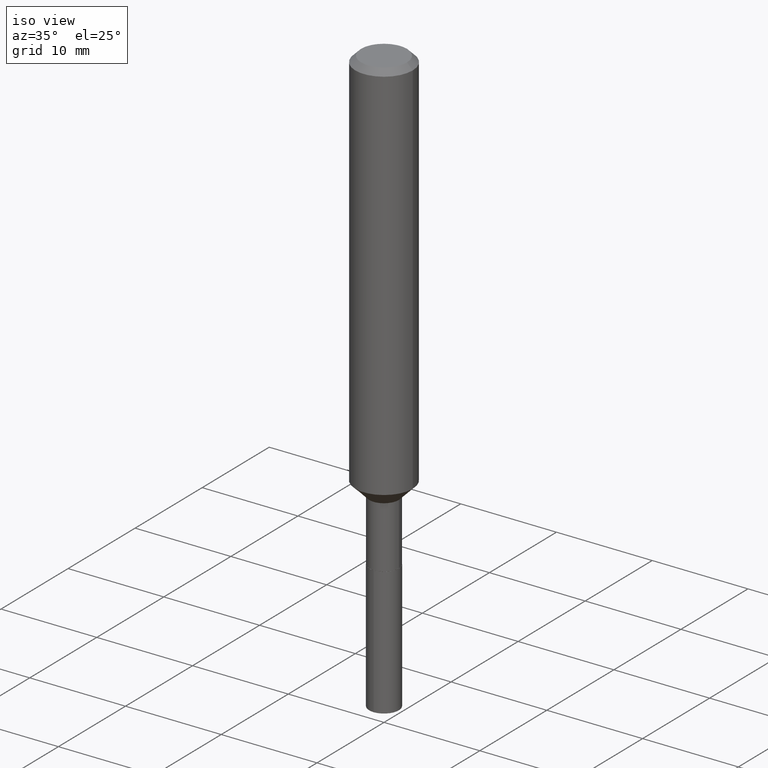
[diagram: clean part render]
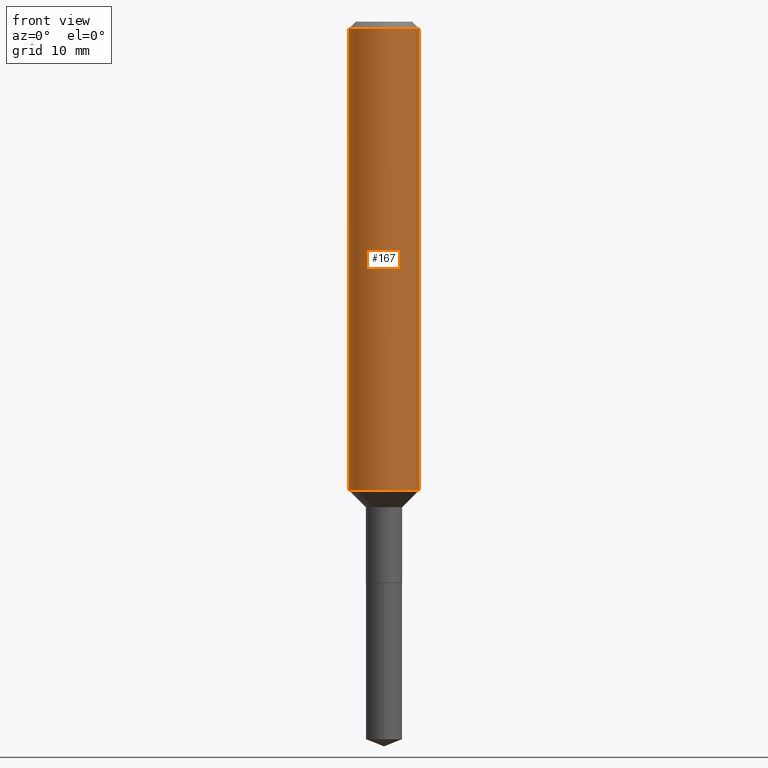
[diagram: tour spotlight — one face highlighted and labeled with its STEP entity id]
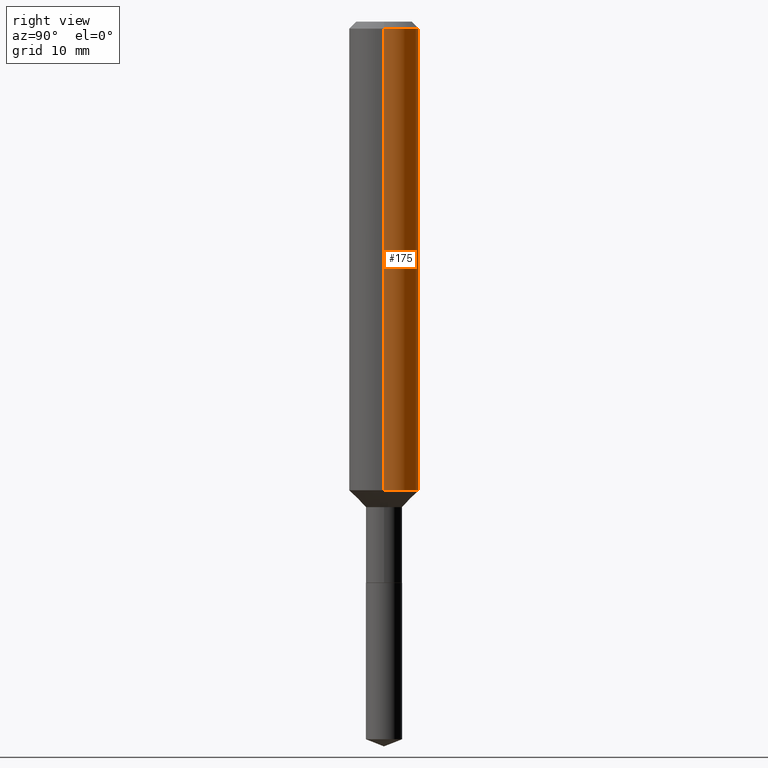
[diagram: tour spotlight — one face highlighted and labeled with its STEP entity id]
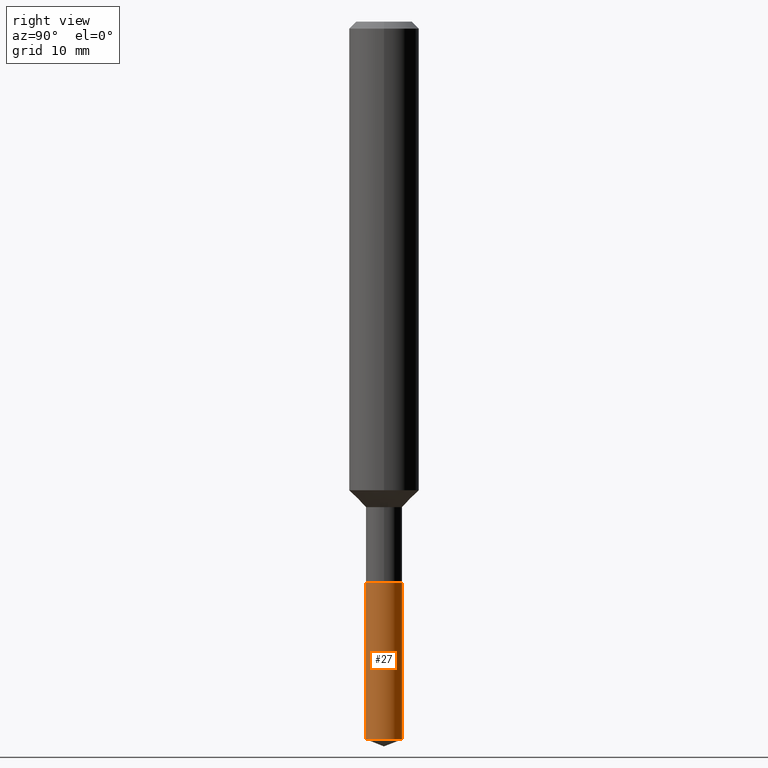
[diagram: tour spotlight — one face highlighted and labeled with its STEP entity id]
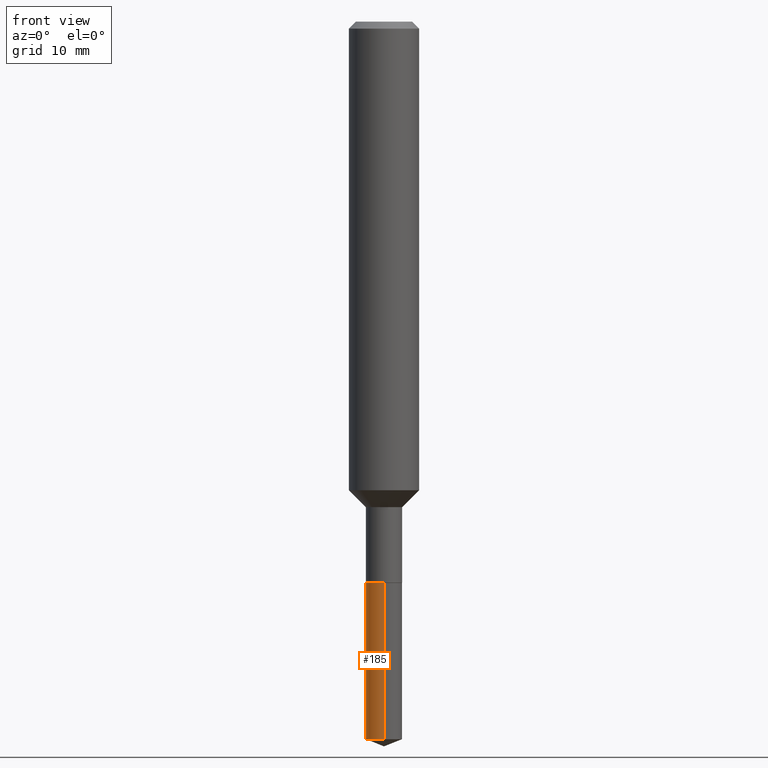
[diagram: tour spotlight — one face highlighted and labeled with its STEP entity id]
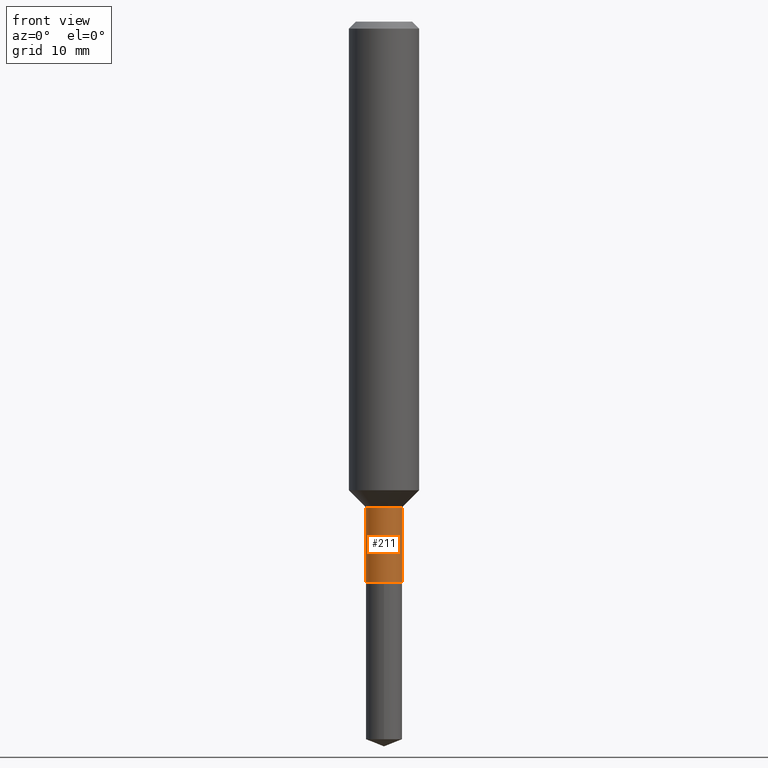
[diagram: tour spotlight — one face highlighted and labeled with its STEP entity id]
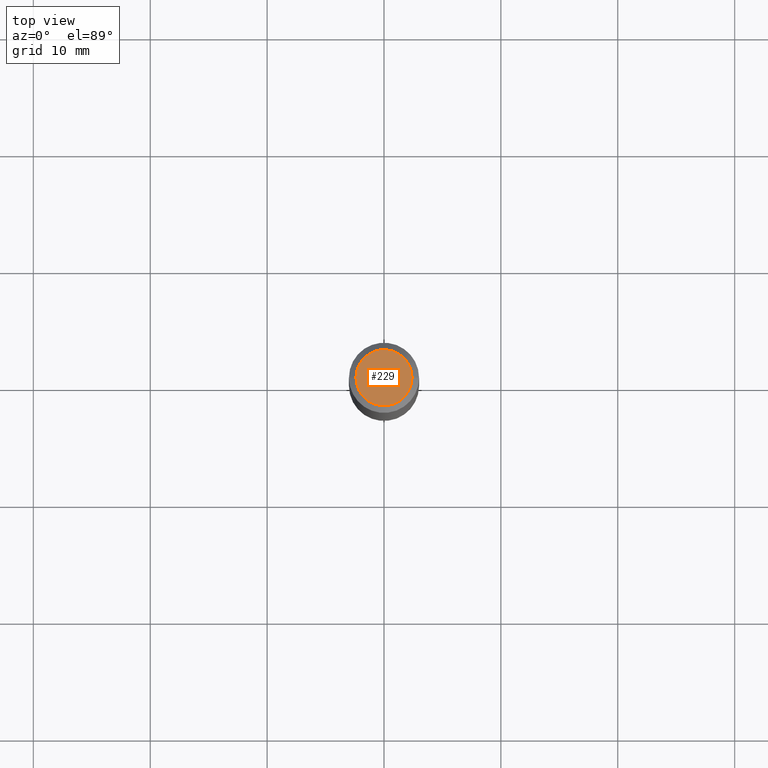
[diagram: tour spotlight — one face highlighted and labeled with its STEP entity id]
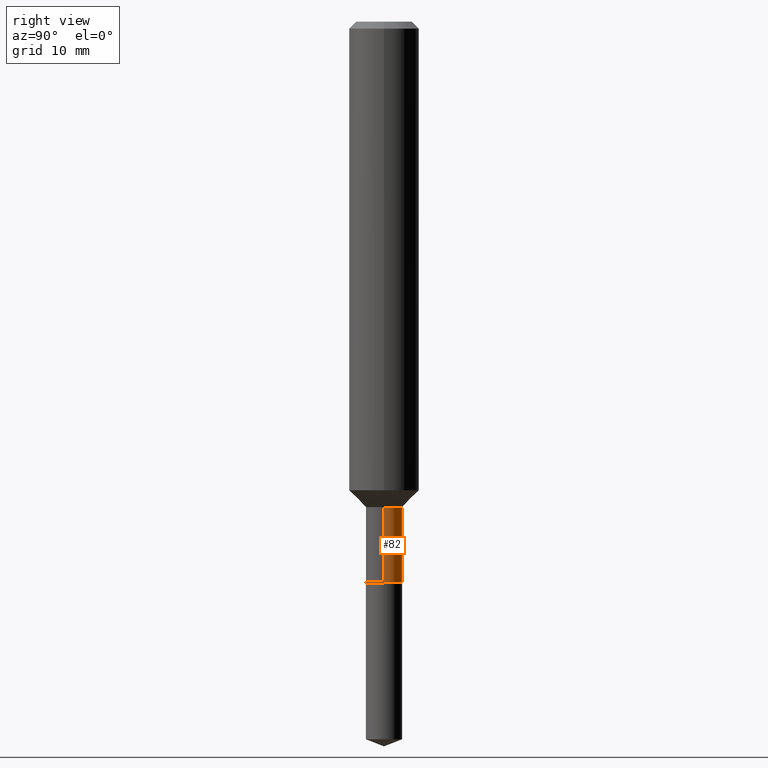
[diagram: tour spotlight — one face highlighted and labeled with its STEP entity id]
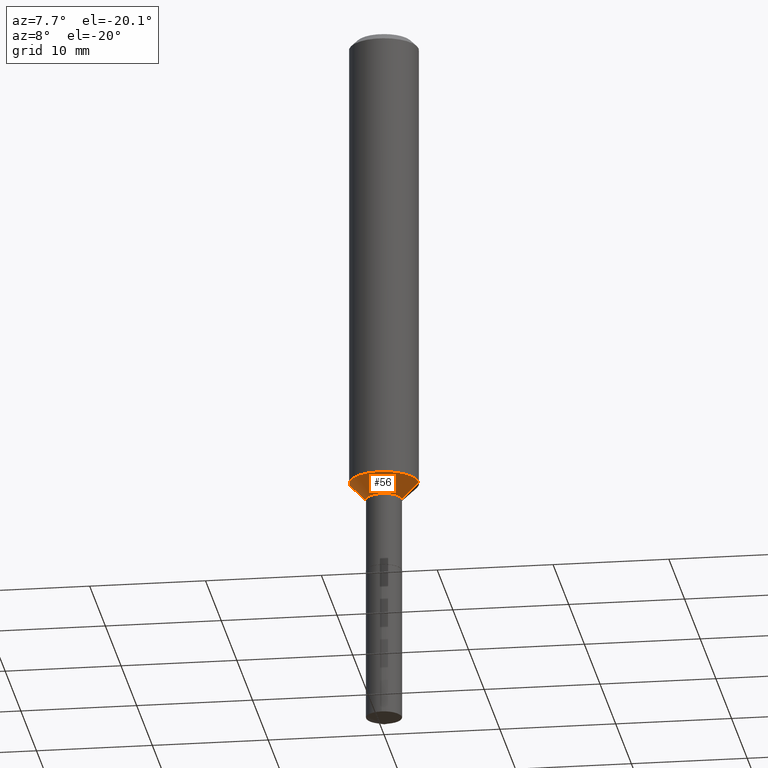
[diagram: tour spotlight — one face highlighted and labeled with its STEP entity id]
A machine part: a face-by-face anatomy tour. The part has 17 B-rep faces; the first image is the clean iso view, then the 8 largest visible faces are spotlighted one at a time (largest first), each with its STEP entity span.

Face 1 — front view, entity #167. In plain terms, the highlighted cylindrical surface (edge-blend (fillet) strip) has radius 2.9997 mm, axis along (-0, 0, 1).
Definition (entity closure, byte-faithful):
#1 = CARTESIAN_POINT ( 'NONE',  ( 0.1181000000000001632, -6.334594593063117919E-15, -1.578100000000000058 ) ) ;
#29 = VECTOR ( 'NONE', #41, 39.37007874015748143 ) ;
#41 = DIRECTION ( 'NONE',  ( -2.445468806185136877E-29, 3.491481338843145188E-15, 1.000000000000000000 ) ) ;
#51 = CARTESIAN_POINT ( 'NONE',  ( -0.1180999999999999966, -1.957036774093242387E-15, -0.02362000000000014088 ) ) ;
#61 = ORIENTED_EDGE ( 'NONE', *, *, #146, .F. ) ;
#63 = DIRECTION ( 'NONE',  ( -2.445468806185136597E-29, 3.491481338843145583E-15, 1.000000000000000000 ) ) ;
#66 = CIRCLE ( 'NONE', #173, 0.1180999999999999966 ) ;
#71 = DIRECTION ( 'NONE',  ( -2.445468806185136597E-29, 3.491481338843145583E-15, 1.000000000000000000 ) ) ;
#74 = CARTESIAN_POINT ( 'NONE',  ( 5.776197320209327532E-31, -8.246878922347559293E-17, -0.02362000000000014088 ) ) ;
#75 = DIRECTION ( 'NONE',  ( -2.445468806185136597E-29, 3.491481338843145583E-15, 1.000000000000000000 ) ) ;
#79 = VECTOR ( 'NONE', #391, 39.37007874015748143 ) ;
#90 = AXIS2_PLACEMENT_3D ( 'NONE', #293, #63, #102 ) ;
#102 = DIRECTION ( 'NONE',  ( 1.000000000000000000, -6.982962677686263555E-15, 0.000000000000000000 ) ) ;
#115 = CARTESIAN_POINT ( 'NONE',  ( -0.1181000000000000799, 8.391509709326788873E-16, -5.809262341591047988E-30 ) ) ;
#124 = EDGE_CURVE ( 'NONE', #361, #126, #66, .T. ) ;
#126 = VERTEX_POINT ( 'NONE', #380 ) ;
#133 = CARTESIAN_POINT ( 'NONE',  ( 0.1181000000000000799, -8.246878922347486570E-16, 5.758764772215004644E-30 ) ) ;
#141 = EDGE_LOOP ( 'NONE', ( #61, #218, #171, #283 ) ) ;
#146 = EDGE_CURVE ( 'NONE', #204, #361, #451, .T. ) ;
#151 = CARTESIAN_POINT ( 'NONE',  ( -0.1181000000000001632, -4.670755729895689092E-15, -1.578100000000000058 ) ) ;
#165 = VERTEX_POINT ( 'NONE', #1 ) ;
#167 = ADVANCED_FACE ( 'NONE', ( #265 ), #187, .T. ) ;
#168 = LINE ( 'NONE', #133, #79 ) ;
#171 = ORIENTED_EDGE ( 'NONE', *, *, #427, .T. ) ;
#173 = AXIS2_PLACEMENT_3D ( 'NONE', #74, #71, #345 ) ;
#187 = CYLINDRICAL_SURFACE ( 'NONE', #233, 0.1181000000000000799 ) ;
#204 = VERTEX_POINT ( 'NONE', #151 ) ;
#218 = ORIENTED_EDGE ( 'NONE', *, *, #456, .T. ) ;
#233 = AXIS2_PLACEMENT_3D ( 'NONE', #346, #75, #455 ) ;
#265 = FACE_OUTER_BOUND ( 'NONE', #141, .T. ) ;
#283 = ORIENTED_EDGE ( 'NONE', *, *, #124, .F. ) ;
#293 = CARTESIAN_POINT ( 'NONE',  ( 3.859194323040764276E-29, -5.509906700828368078E-15, -1.578100000000000058 ) ) ;
#345 = DIRECTION ( 'NONE',  ( 1.000000000000000000, -6.982962677686266711E-15, 0.000000000000000000 ) ) ;
#346 = CARTESIAN_POINT ( 'NONE',  ( 0.000000000000000000, 0.000000000000000000, 0.000000000000000000 ) ) ;
#361 = VERTEX_POINT ( 'NONE', #51 ) ;
#380 = CARTESIAN_POINT ( 'NONE',  ( 0.1180999999999999966, -9.071566814582237199E-16, -0.02362000000000014088 ) ) ;
#391 = DIRECTION ( 'NONE',  ( -2.445468806185136877E-29, 3.491481338843145188E-15, 1.000000000000000000 ) ) ;
#427 = EDGE_CURVE ( 'NONE', #165, #126, #168, .T. ) ;
#451 = LINE ( 'NONE', #115, #29 ) ;
#455 = DIRECTION ( 'NONE',  ( 1.000000000000000000, -6.982962677686266711E-15, 4.876176775795936353E-29 ) ) ;
#456 = EDGE_CURVE ( 'NONE', #204, #165, #482, .T. ) ;
#482 = CIRCLE ( 'NONE', #90, 0.1181000000000001632 ) ;

Face 2 — right view, entity #175. In plain terms, the highlighted cylindrical surface (edge-blend (fillet) strip) has radius 2.9997 mm, axis along (-0, 0, 1).
Definition (entity closure, byte-faithful):
#1 = CARTESIAN_POINT ( 'NONE',  ( 0.1181000000000001632, -6.334594593063117919E-15, -1.578100000000000058 ) ) ;
#2 = CARTESIAN_POINT ( 'NONE',  ( 0.000000000000000000, 0.000000000000000000, 0.000000000000000000 ) ) ;
#14 = AXIS2_PLACEMENT_3D ( 'NONE', #2, #307, #69 ) ;
#29 = VECTOR ( 'NONE', #41, 39.37007874015748143 ) ;
#41 = DIRECTION ( 'NONE',  ( -2.445468806185136877E-29, 3.491481338843145188E-15, 1.000000000000000000 ) ) ;
#48 = CARTESIAN_POINT ( 'NONE',  ( 5.776197320209327532E-31, -8.246878922347559293E-17, -0.02362000000000014088 ) ) ;
#51 = CARTESIAN_POINT ( 'NONE',  ( -0.1180999999999999966, -1.957036774093242387E-15, -0.02362000000000014088 ) ) ;
#69 = DIRECTION ( 'NONE',  ( 1.000000000000000000, -6.982962677686266711E-15, 4.876176775795936353E-29 ) ) ;
#79 = VECTOR ( 'NONE', #391, 39.37007874015748143 ) ;
#83 = EDGE_LOOP ( 'NONE', ( #140, #422, #86, #332 ) ) ;
#86 = ORIENTED_EDGE ( 'NONE', *, *, #278, .F. ) ;
#91 = DIRECTION ( 'NONE',  ( -2.445468806185136597E-29, 3.491481338843145583E-15, 1.000000000000000000 ) ) ;
#100 = EDGE_CURVE ( 'NONE', #165, #204, #430, .T. ) ;
#115 = CARTESIAN_POINT ( 'NONE',  ( -0.1181000000000000799, 8.391509709326788873E-16, -5.809262341591047988E-30 ) ) ;
#126 = VERTEX_POINT ( 'NONE', #380 ) ;
#127 = AXIS2_PLACEMENT_3D ( 'NONE', #48, #91, #282 ) ;
#133 = CARTESIAN_POINT ( 'NONE',  ( 0.1181000000000000799, -8.246878922347486570E-16, 5.758764772215004644E-30 ) ) ;
#140 = ORIENTED_EDGE ( 'NONE', *, *, #100, .T. ) ;
#146 = EDGE_CURVE ( 'NONE', #204, #361, #451, .T. ) ;
#147 = DIRECTION ( 'NONE',  ( -2.445468806185136597E-29, 3.491481338843145583E-15, 1.000000000000000000 ) ) ;
#151 = CARTESIAN_POINT ( 'NONE',  ( -0.1181000000000001632, -4.670755729895689092E-15, -1.578100000000000058 ) ) ;
#165 = VERTEX_POINT ( 'NONE', #1 ) ;
#168 = LINE ( 'NONE', #133, #79 ) ;
#175 = ADVANCED_FACE ( 'NONE', ( #227 ), #487, .T. ) ;
#180 = CIRCLE ( 'NONE', #127, 0.1180999999999999966 ) ;
#204 = VERTEX_POINT ( 'NONE', #151 ) ;
#227 = FACE_OUTER_BOUND ( 'NONE', #83, .T. ) ;
#278 = EDGE_CURVE ( 'NONE', #126, #361, #180, .T. ) ;
#282 = DIRECTION ( 'NONE',  ( 1.000000000000000000, -6.982962677686266711E-15, 0.000000000000000000 ) ) ;
#298 = CARTESIAN_POINT ( 'NONE',  ( 3.859194323040764276E-29, -5.509906700828368078E-15, -1.578100000000000058 ) ) ;
#307 = DIRECTION ( 'NONE',  ( -2.445468806185136597E-29, 3.491481338843145583E-15, 1.000000000000000000 ) ) ;
#332 = ORIENTED_EDGE ( 'NONE', *, *, #427, .F. ) ;
#361 = VERTEX_POINT ( 'NONE', #51 ) ;
#380 = CARTESIAN_POINT ( 'NONE',  ( 0.1180999999999999966, -9.071566814582237199E-16, -0.02362000000000014088 ) ) ;
#391 = DIRECTION ( 'NONE',  ( -2.445468806185136877E-29, 3.491481338843145188E-15, 1.000000000000000000 ) ) ;
#422 = ORIENTED_EDGE ( 'NONE', *, *, #146, .T. ) ;
#427 = EDGE_CURVE ( 'NONE', #165, #126, #168, .T. ) ;
#430 = CIRCLE ( 'NONE', #472, 0.1181000000000001632 ) ;
#445 = DIRECTION ( 'NONE',  ( 1.000000000000000000, -6.982962677686263555E-15, 0.000000000000000000 ) ) ;
#451 = LINE ( 'NONE', #115, #29 ) ;
#472 = AXIS2_PLACEMENT_3D ( 'NONE', #298, #147, #445 ) ;
#487 = CYLINDRICAL_SURFACE ( 'NONE', #14, 0.1181000000000000799 ) ;

Face 3 — right view, entity #27. In plain terms, the highlighted cylindrical surface (edge-blend (fillet) strip) has radius 1.5494 mm, axis along (-0, 0, 1).
Definition (entity closure, byte-faithful):
#5 = AXIS2_PLACEMENT_3D ( 'NONE', #217, #373, #360 ) ;
#6 = CARTESIAN_POINT ( 'NONE',  ( -4.259607233388032369E-16, -0.06100000000000843636, -2.416871460987488618 ) ) ;
#10 = ORIENTED_EDGE ( 'NONE', *, *, #442, .T. ) ;
#27 = ADVANCED_FACE ( 'NONE', ( #396 ), #99, .T. ) ;
#28 = DIRECTION ( 'NONE',  ( -6.982962677686265922E-15, -1.000000000000000000, 4.478439333875842027E-15 ) ) ;
#40 = EDGE_CURVE ( 'NONE', #384, #387, #62, .T. ) ;
#62 = LINE ( 'NONE', #258, #437 ) ;
#85 = CARTESIAN_POINT ( 'NONE',  ( 4.334310688137201206E-16, 0.06099999999999155403, -2.416871460987489062 ) ) ;
#99 = CYLINDRICAL_SURFACE ( 'NONE', #164, 0.06099999999999999173 ) ;
#156 = VECTOR ( 'NONE', #241, 39.37007874015748143 ) ;
#164 = AXIS2_PLACEMENT_3D ( 'NONE', #363, #478, #28 ) ;
#209 = ORIENTED_EDGE ( 'NONE', *, *, #40, .F. ) ;
#210 = EDGE_LOOP ( 'NONE', ( #10, #466, #429, #209 ) ) ;
#217 = CARTESIAN_POINT ( 'NONE',  ( 4.621202403048053204E-29, -6.597852286011892490E-15, -1.889700000000000157 ) ) ;
#222 = DIRECTION ( 'NONE',  ( -2.434988852863249163E-29, 3.506489228481988303E-15, 1.000000000000000000 ) ) ;
#241 = DIRECTION ( 'NONE',  ( -2.434988852863248882E-29, 3.506489228481988303E-15, 1.000000000000000000 ) ) ;
#243 = CARTESIAN_POINT ( 'NONE',  ( 4.334310688137072523E-16, 0.06099999999999339284, -1.889700000000000379 ) ) ;
#253 = DIRECTION ( 'NONE',  ( -2.434988852863248882E-29, 3.506489228481988303E-15, 1.000000000000000000 ) ) ;
#258 = CARTESIAN_POINT ( 'NONE',  ( -4.259607233388159573E-16, -0.06100000000000659062, -1.889699999999999713 ) ) ;
#285 = CIRCLE ( 'NONE', #397, 0.06100000000000000561 ) ;
#290 = VERTEX_POINT ( 'NONE', #381 ) ;
#292 = CIRCLE ( 'NONE', #5, 0.06099999999999999173 ) ;
#317 = LINE ( 'NONE', #243, #156 ) ;
#336 = CARTESIAN_POINT ( 'NONE',  ( 5.904859034100222051E-29, -8.446373335527634562E-15, -2.416871460987489062 ) ) ;
#349 = CARTESIAN_POINT ( 'NONE',  ( -4.259607233388159573E-16, -0.06100000000000659062, -1.889699999999999713 ) ) ;
#357 = EDGE_CURVE ( 'NONE', #403, #290, #317, .T. ) ;
#360 = DIRECTION ( 'NONE',  ( -6.982962677686265922E-15, -1.000000000000000000, 4.478439333875842027E-15 ) ) ;
#363 = CARTESIAN_POINT ( 'NONE',  ( 4.621202403048053204E-29, -6.597852286011892490E-15, -1.889700000000000157 ) ) ;
#373 = DIRECTION ( 'NONE',  ( -2.434988852863249163E-29, 3.506489228481988303E-15, 1.000000000000000000 ) ) ;
#381 = CARTESIAN_POINT ( 'NONE',  ( 4.334310688137201699E-16, 0.06099999999999339284, -1.889700000000000379 ) ) ;
#384 = VERTEX_POINT ( 'NONE', #6 ) ;
#387 = VERTEX_POINT ( 'NONE', #349 ) ;
#396 = FACE_OUTER_BOUND ( 'NONE', #210, .T. ) ;
#397 = AXIS2_PLACEMENT_3D ( 'NONE', #336, #222, #443 ) ;
#403 = VERTEX_POINT ( 'NONE', #85 ) ;
#429 = ORIENTED_EDGE ( 'NONE', *, *, #475, .F. ) ;
#437 = VECTOR ( 'NONE', #253, 39.37007874015748143 ) ;
#442 = EDGE_CURVE ( 'NONE', #384, #403, #285, .T. ) ;
#443 = DIRECTION ( 'NONE',  ( -6.982962677686265922E-15, -1.000000000000000000, 4.478439333875841238E-15 ) ) ;
#466 = ORIENTED_EDGE ( 'NONE', *, *, #357, .T. ) ;
#475 = EDGE_CURVE ( 'NONE', #387, #290, #292, .T. ) ;
#478 = DIRECTION ( 'NONE',  ( -2.434988852863249163E-29, 3.506489228481988303E-15, 1.000000000000000000 ) ) ;

Face 4 — front view, entity #185. In plain terms, the highlighted cylindrical surface (edge-blend (fillet) strip) has radius 1.5494 mm, axis along (-0, 0, 1).
Definition (entity closure, byte-faithful):
#6 = CARTESIAN_POINT ( 'NONE',  ( -4.259607233388032369E-16, -0.06100000000000843636, -2.416871460987488618 ) ) ;
#21 = EDGE_CURVE ( 'NONE', #290, #387, #188, .T. ) ;
#40 = EDGE_CURVE ( 'NONE', #384, #387, #62, .T. ) ;
#62 = LINE ( 'NONE', #258, #437 ) ;
#85 = CARTESIAN_POINT ( 'NONE',  ( 4.334310688137201206E-16, 0.06099999999999155403, -2.416871460987489062 ) ) ;
#113 = DIRECTION ( 'NONE',  ( -2.434988852863249163E-29, 3.506489228481988303E-15, 1.000000000000000000 ) ) ;
#119 = DIRECTION ( 'NONE',  ( -2.434988852863249163E-29, 3.506489228481988303E-15, 1.000000000000000000 ) ) ;
#143 = CARTESIAN_POINT ( 'NONE',  ( 4.621202403048053204E-29, -6.597852286011892490E-15, -1.889700000000000157 ) ) ;
#145 = ORIENTED_EDGE ( 'NONE', *, *, #357, .F. ) ;
#156 = VECTOR ( 'NONE', #241, 39.37007874015748143 ) ;
#161 = ORIENTED_EDGE ( 'NONE', *, *, #225, .T. ) ;
#184 = DIRECTION ( 'NONE',  ( -6.982962677686265922E-15, -1.000000000000000000, 4.478439333875842027E-15 ) ) ;
#185 = ADVANCED_FACE ( 'NONE', ( #223 ), #230, .T. ) ;
#188 = CIRCLE ( 'NONE', #252, 0.06099999999999999173 ) ;
#201 = EDGE_LOOP ( 'NONE', ( #145, #161, #389, #343 ) ) ;
#223 = FACE_OUTER_BOUND ( 'NONE', #201, .T. ) ;
#225 = EDGE_CURVE ( 'NONE', #403, #384, #453, .T. ) ;
#230 = CYLINDRICAL_SURFACE ( 'NONE', #353, 0.06099999999999999173 ) ;
#241 = DIRECTION ( 'NONE',  ( -2.434988852863248882E-29, 3.506489228481988303E-15, 1.000000000000000000 ) ) ;
#243 = CARTESIAN_POINT ( 'NONE',  ( 4.334310688137072523E-16, 0.06099999999999339284, -1.889700000000000379 ) ) ;
#252 = AXIS2_PLACEMENT_3D ( 'NONE', #143, #324, #329 ) ;
#253 = DIRECTION ( 'NONE',  ( -2.434988852863248882E-29, 3.506489228481988303E-15, 1.000000000000000000 ) ) ;
#258 = CARTESIAN_POINT ( 'NONE',  ( -4.259607233388159573E-16, -0.06100000000000659062, -1.889699999999999713 ) ) ;
#262 = CARTESIAN_POINT ( 'NONE',  ( 5.904859034100222051E-29, -8.446373335527634562E-15, -2.416871460987489062 ) ) ;
#264 = DIRECTION ( 'NONE',  ( -6.982962677686265922E-15, -1.000000000000000000, 4.478439333875841238E-15 ) ) ;
#290 = VERTEX_POINT ( 'NONE', #381 ) ;
#300 = AXIS2_PLACEMENT_3D ( 'NONE', #262, #113, #264 ) ;
#317 = LINE ( 'NONE', #243, #156 ) ;
#324 = DIRECTION ( 'NONE',  ( -2.434988852863249163E-29, 3.506489228481988303E-15, 1.000000000000000000 ) ) ;
#329 = DIRECTION ( 'NONE',  ( -6.982962677686265922E-15, -1.000000000000000000, 4.478439333875842027E-15 ) ) ;
#343 = ORIENTED_EDGE ( 'NONE', *, *, #21, .F. ) ;
#349 = CARTESIAN_POINT ( 'NONE',  ( -4.259607233388159573E-16, -0.06100000000000659062, -1.889699999999999713 ) ) ;
#353 = AXIS2_PLACEMENT_3D ( 'NONE', #412, #119, #184 ) ;
#357 = EDGE_CURVE ( 'NONE', #403, #290, #317, .T. ) ;
#381 = CARTESIAN_POINT ( 'NONE',  ( 4.334310688137201699E-16, 0.06099999999999339284, -1.889700000000000379 ) ) ;
#384 = VERTEX_POINT ( 'NONE', #6 ) ;
#387 = VERTEX_POINT ( 'NONE', #349 ) ;
#389 = ORIENTED_EDGE ( 'NONE', *, *, #40, .T. ) ;
#403 = VERTEX_POINT ( 'NONE', #85 ) ;
#412 = CARTESIAN_POINT ( 'NONE',  ( 4.621202403048053204E-29, -6.597852286011892490E-15, -1.889700000000000157 ) ) ;
#437 = VECTOR ( 'NONE', #253, 39.37007874015748143 ) ;
#453 = CIRCLE ( 'NONE', #300, 0.06100000000000000561 ) ;

Face 5 — front view, entity #211. In plain terms, the highlighted cylindrical surface (edge-blend (fillet) strip) has radius 1.5494 mm, axis along (-0, 0, 1).
Definition (entity closure, byte-faithful):
#16 = DIRECTION ( 'NONE',  ( 1.000000000000000000, -6.982962677686273021E-15, 0.000000000000000000 ) ) ;
#22 = CIRCLE ( 'NONE', #78, 0.06100000000000000561 ) ;
#49 = ORIENTED_EDGE ( 'NONE', *, *, #383, .T. ) ;
#78 = AXIS2_PLACEMENT_3D ( 'NONE', #157, #200, #457 ) ;
#112 = DIRECTION ( 'NONE',  ( -2.445468806185136597E-29, 3.491481338843145583E-15, 1.000000000000000000 ) ) ;
#116 = AXIS2_PLACEMENT_3D ( 'NONE', #303, #112, #486 ) ;
#154 = CARTESIAN_POINT ( 'NONE',  ( 0.06100000000000000561, -7.022067268681333634E-15, -1.889200000000000212 ) ) ;
#157 = CARTESIAN_POINT ( 'NONE',  ( 4.619979668644960403E-29, -6.596106545342470986E-15, -1.889200000000000212 ) ) ;
#170 = CARTESIAN_POINT ( 'NONE',  ( 0.06099999999999996397, -6.135231008615174322E-15, -1.635199999999999987 ) ) ;
#195 = CARTESIAN_POINT ( 'NONE',  ( -0.06099999999999997785, 4.334310688136609560E-16, -3.000550405055491442E-30 ) ) ;
#200 = DIRECTION ( 'NONE',  ( -2.445468806185136597E-29, 3.491481338843145583E-15, 1.000000000000000000 ) ) ;
#203 = DIRECTION ( 'NONE',  ( -2.445468806185136877E-29, 3.491481338843145188E-15, 1.000000000000000000 ) ) ;
#208 = VERTEX_POINT ( 'NONE', #154 ) ;
#211 = ADVANCED_FACE ( 'NONE', ( #337 ), #374, .T. ) ;
#235 = AXIS2_PLACEMENT_3D ( 'NONE', #424, #467, #16 ) ;
#239 = ORIENTED_EDGE ( 'NONE', *, *, #248, .F. ) ;
#248 = EDGE_CURVE ( 'NONE', #392, #416, #277, .T. ) ;
#259 = DIRECTION ( 'NONE',  ( -2.445468806185136877E-29, 3.491481338843145188E-15, 1.000000000000000000 ) ) ;
#271 = ORIENTED_EDGE ( 'NONE', *, *, #464, .T. ) ;
#277 = LINE ( 'NONE', #195, #462 ) ;
#279 = ORIENTED_EDGE ( 'NONE', *, *, #366, .F. ) ;
#297 = LINE ( 'NONE', #371, #364 ) ;
#303 = CARTESIAN_POINT ( 'NONE',  ( 0.000000000000000000, 0.000000000000000000, 0.000000000000000000 ) ) ;
#312 = CARTESIAN_POINT ( 'NONE',  ( -0.06099999999999996397, -5.719257346495731015E-15, -1.635199999999999987 ) ) ;
#318 = EDGE_LOOP ( 'NONE', ( #239, #49, #271, #279 ) ) ;
#337 = FACE_OUTER_BOUND ( 'NONE', #318, .T. ) ;
#356 = VERTEX_POINT ( 'NONE', #170 ) ;
#364 = VECTOR ( 'NONE', #259, 39.37007874015748143 ) ;
#366 = EDGE_CURVE ( 'NONE', #416, #356, #446, .T. ) ;
#371 = CARTESIAN_POINT ( 'NONE',  ( 0.06099999999999997785, -4.259607233388621057E-16, 2.974467833235519460E-30 ) ) ;
#374 = CYLINDRICAL_SURFACE ( 'NONE', #116, 0.06099999999999997785 ) ;
#383 = EDGE_CURVE ( 'NONE', #392, #208, #22, .T. ) ;
#386 = CARTESIAN_POINT ( 'NONE',  ( -0.06100000000000000561, -5.719257346495731015E-15, -1.889200000000000212 ) ) ;
#392 = VERTEX_POINT ( 'NONE', #386 ) ;
#416 = VERTEX_POINT ( 'NONE', #312 ) ;
#424 = CARTESIAN_POINT ( 'NONE',  ( 3.998830591873936084E-29, -5.709270285276311674E-15, -1.635199999999999987 ) ) ;
#446 = CIRCLE ( 'NONE', #235, 0.06099999999999996397 ) ;
#457 = DIRECTION ( 'NONE',  ( 1.000000000000000000, -6.982962677686268288E-15, 0.000000000000000000 ) ) ;
#462 = VECTOR ( 'NONE', #203, 39.37007874015748143 ) ;
#464 = EDGE_CURVE ( 'NONE', #208, #356, #297, .T. ) ;
#467 = DIRECTION ( 'NONE',  ( -2.445468806185136597E-29, 3.491481338843145583E-15, 1.000000000000000000 ) ) ;
#486 = DIRECTION ( 'NONE',  ( 1.000000000000000000, -6.982962677686266711E-15, 4.876176775795935232E-29 ) ) ;

Face 6 — top view, entity #229. In plain terms, the highlighted planar face has unit normal (0, -0, -1).
Definition (entity closure, byte-faithful):
#4 = AXIS2_PLACEMENT_3D ( 'NONE', #460, #382, #431 ) ;
#12 = CARTESIAN_POINT ( 'NONE',  ( 4.716267017698007905E-46, -6.733579360998555036E-32, -1.928573779297252010E-17 ) ) ;
#23 = AXIS2_PLACEMENT_3D ( 'NONE', #12, #270, #160 ) ;
#43 = CIRCLE ( 'NONE', #23, 0.09447999999999998066 ) ;
#88 = ORIENTED_EDGE ( 'NONE', *, *, #232, .T. ) ;
#96 = EDGE_LOOP ( 'NONE', ( #88, #426 ) ) ;
#160 = DIRECTION ( 'NONE',  ( 1.000000000000000000, -6.982962677686267499E-15, 4.875432709231658792E-29 ) ) ;
#198 = DIRECTION ( 'NONE',  ( -1.000000000000000000, 6.982962677686265922E-15, -4.876176775795935793E-29 ) ) ;
#229 = ADVANCED_FACE ( 'NONE', ( #408 ), #376, .F. ) ;
#232 = EDGE_CURVE ( 'NONE', #439, #468, #43, .T. ) ;
#270 = DIRECTION ( 'NONE',  ( -2.445468806185136597E-29, 3.491481338843145583E-15, 1.000000000000000000 ) ) ;
#280 = CARTESIAN_POINT ( 'NONE',  ( 2.358133508849003952E-46, -3.366789680499277518E-32, -9.642868896486260050E-18 ) ) ;
#321 = CARTESIAN_POINT ( 'NONE',  ( -0.09447999999999998066, 7.009847083995354710E-16, -1.928573779297727792E-17 ) ) ;
#325 = CIRCLE ( 'NONE', #4, 0.09447999999999998066 ) ;
#338 = EDGE_CURVE ( 'NONE', #468, #439, #325, .T. ) ;
#358 = DIRECTION ( 'NONE',  ( 2.438088387897960049E-29, -3.491481338843145188E-15, -1.000000000000000000 ) ) ;
#376 = PLANE ( 'NONE',  #390 ) ;
#382 = DIRECTION ( 'NONE',  ( -2.445468806185136597E-29, 3.491481338843145583E-15, 1.000000000000000000 ) ) ;
#390 = AXIS2_PLACEMENT_3D ( 'NONE', #280, #358, #198 ) ;
#407 = CARTESIAN_POINT ( 'NONE',  ( 0.09447999999999998066, -7.704367267948738690E-16, -1.928573779296752193E-17 ) ) ;
#408 = FACE_OUTER_BOUND ( 'NONE', #96, .T. ) ;
#426 = ORIENTED_EDGE ( 'NONE', *, *, #338, .T. ) ;
#431 = DIRECTION ( 'NONE',  ( 1.000000000000000000, -6.982962677686267499E-15, 4.875432709231658792E-29 ) ) ;
#439 = VERTEX_POINT ( 'NONE', #321 ) ;
#460 = CARTESIAN_POINT ( 'NONE',  ( 4.716267017698007905E-46, -6.733579360998555036E-32, -1.928573779297252010E-17 ) ) ;
#468 = VERTEX_POINT ( 'NONE', #407 ) ;

Face 7 — right view, entity #82. In plain terms, the highlighted cylindrical surface (edge-blend (fillet) strip) has radius 1.5494 mm, axis along (-0, 0, 1).
Definition (entity closure, byte-faithful):
#39 = CARTESIAN_POINT ( 'NONE',  ( 3.998830591873936084E-29, -5.709270285276311674E-15, -1.635199999999999987 ) ) ;
#64 = EDGE_LOOP ( 'NONE', ( #275, #236, #436, #309 ) ) ;
#70 = FACE_OUTER_BOUND ( 'NONE', #64, .T. ) ;
#81 = DIRECTION ( 'NONE',  ( -2.445468806185136597E-29, 3.491481338843145583E-15, 1.000000000000000000 ) ) ;
#82 = ADVANCED_FACE ( 'NONE', ( #70 ), #155, .T. ) ;
#109 = DIRECTION ( 'NONE',  ( -2.445468806185136597E-29, 3.491481338843145583E-15, 1.000000000000000000 ) ) ;
#125 = DIRECTION ( 'NONE',  ( 1.000000000000000000, -6.982962677686268288E-15, 0.000000000000000000 ) ) ;
#154 = CARTESIAN_POINT ( 'NONE',  ( 0.06100000000000000561, -7.022067268681333634E-15, -1.889200000000000212 ) ) ;
#155 = CYLINDRICAL_SURFACE ( 'NONE', #226, 0.06099999999999997785 ) ;
#170 = CARTESIAN_POINT ( 'NONE',  ( 0.06099999999999996397, -6.135231008615174322E-15, -1.635199999999999987 ) ) ;
#189 = AXIS2_PLACEMENT_3D ( 'NONE', #39, #109, #409 ) ;
#195 = CARTESIAN_POINT ( 'NONE',  ( -0.06099999999999997785, 4.334310688136609560E-16, -3.000550405055491442E-30 ) ) ;
#203 = DIRECTION ( 'NONE',  ( -2.445468806185136877E-29, 3.491481338843145188E-15, 1.000000000000000000 ) ) ;
#208 = VERTEX_POINT ( 'NONE', #154 ) ;
#220 = EDGE_CURVE ( 'NONE', #356, #416, #333, .T. ) ;
#224 = DIRECTION ( 'NONE',  ( 1.000000000000000000, -6.982962677686266711E-15, 4.876176775795935232E-29 ) ) ;
#226 = AXIS2_PLACEMENT_3D ( 'NONE', #406, #228, #224 ) ;
#228 = DIRECTION ( 'NONE',  ( -2.445468806185136597E-29, 3.491481338843145583E-15, 1.000000000000000000 ) ) ;
#236 = ORIENTED_EDGE ( 'NONE', *, *, #248, .T. ) ;
#248 = EDGE_CURVE ( 'NONE', #392, #416, #277, .T. ) ;
#259 = DIRECTION ( 'NONE',  ( -2.445468806185136877E-29, 3.491481338843145188E-15, 1.000000000000000000 ) ) ;
#275 = ORIENTED_EDGE ( 'NONE', *, *, #344, .T. ) ;
#277 = LINE ( 'NONE', #195, #462 ) ;
#297 = LINE ( 'NONE', #371, #364 ) ;
#309 = ORIENTED_EDGE ( 'NONE', *, *, #464, .F. ) ;
#312 = CARTESIAN_POINT ( 'NONE',  ( -0.06099999999999996397, -5.719257346495731015E-15, -1.635199999999999987 ) ) ;
#333 = CIRCLE ( 'NONE', #189, 0.06099999999999996397 ) ;
#344 = EDGE_CURVE ( 'NONE', #208, #392, #370, .T. ) ;
#356 = VERTEX_POINT ( 'NONE', #170 ) ;
#364 = VECTOR ( 'NONE', #259, 39.37007874015748143 ) ;
#370 = CIRCLE ( 'NONE', #377, 0.06100000000000000561 ) ;
#371 = CARTESIAN_POINT ( 'NONE',  ( 0.06099999999999997785, -4.259607233388621057E-16, 2.974467833235519460E-30 ) ) ;
#377 = AXIS2_PLACEMENT_3D ( 'NONE', #428, #81, #125 ) ;
#386 = CARTESIAN_POINT ( 'NONE',  ( -0.06100000000000000561, -5.719257346495731015E-15, -1.889200000000000212 ) ) ;
#392 = VERTEX_POINT ( 'NONE', #386 ) ;
#406 = CARTESIAN_POINT ( 'NONE',  ( 0.000000000000000000, 0.000000000000000000, 0.000000000000000000 ) ) ;
#409 = DIRECTION ( 'NONE',  ( 1.000000000000000000, -6.982962677686273021E-15, 0.000000000000000000 ) ) ;
#416 = VERTEX_POINT ( 'NONE', #312 ) ;
#428 = CARTESIAN_POINT ( 'NONE',  ( 4.619979668644960403E-29, -6.596106545342470986E-15, -1.889200000000000212 ) ) ;
#436 = ORIENTED_EDGE ( 'NONE', *, *, #220, .F. ) ;
#462 = VECTOR ( 'NONE', #203, 39.37007874015748143 ) ;
#464 = EDGE_CURVE ( 'NONE', #208, #356, #297, .T. ) ;

Face 8 — auxiliary view, entity #56. In plain terms, the highlighted conical surface has half-angle 45 deg.
Definition (entity closure, byte-faithful):
#1 = CARTESIAN_POINT ( 'NONE',  ( 0.1181000000000001632, -6.334594593063117919E-15, -1.578100000000000058 ) ) ;
#16 = DIRECTION ( 'NONE',  ( 1.000000000000000000, -6.982962677686273021E-15, 0.000000000000000000 ) ) ;
#17 = ORIENTED_EDGE ( 'NONE', *, *, #107, .F. ) ;
#24 = DIRECTION ( 'NONE',  ( 1.000000000000000000, -6.982962677686273021E-15, 0.000000000000000000 ) ) ;
#33 = CARTESIAN_POINT ( 'NONE',  ( -0.06099999999999996397, -5.275839216462650965E-15, -1.635199999999999987 ) ) ;
#35 = LINE ( 'NONE', #33, #72 ) ;
#52 = ORIENTED_EDGE ( 'NONE', *, *, #456, .F. ) ;
#56 = ADVANCED_FACE ( 'NONE', ( #441 ), #395, .T. ) ;
#57 = EDGE_LOOP ( 'NONE', ( #17, #291, #327, #52 ) ) ;
#63 = DIRECTION ( 'NONE',  ( -2.445468806185136597E-29, 3.491481338843145583E-15, 1.000000000000000000 ) ) ;
#72 = VECTOR ( 'NONE', #269, 39.37007874015748143 ) ;
#90 = AXIS2_PLACEMENT_3D ( 'NONE', #293, #63, #102 ) ;
#102 = DIRECTION ( 'NONE',  ( 1.000000000000000000, -6.982962677686263555E-15, 0.000000000000000000 ) ) ;
#107 = EDGE_CURVE ( 'NONE', #416, #204, #35, .T. ) ;
#114 = EDGE_CURVE ( 'NONE', #356, #165, #192, .T. ) ;
#139 = DIRECTION ( 'NONE',  ( -2.445468806185136597E-29, 3.491481338843145583E-15, 1.000000000000000000 ) ) ;
#151 = CARTESIAN_POINT ( 'NONE',  ( -0.1181000000000001632, -4.670755729895689092E-15, -1.578100000000000058 ) ) ;
#165 = VERTEX_POINT ( 'NONE', #1 ) ;
#170 = CARTESIAN_POINT ( 'NONE',  ( 0.06099999999999996397, -6.135231008615174322E-15, -1.635199999999999987 ) ) ;
#191 = DIRECTION ( 'NONE',  ( 0.7071067811865484609, -2.468850131082266921E-15, 0.7071067811865465735 ) ) ;
#192 = LINE ( 'NONE', #342, #418 ) ;
#204 = VERTEX_POINT ( 'NONE', #151 ) ;
#235 = AXIS2_PLACEMENT_3D ( 'NONE', #424, #467, #16 ) ;
#269 = DIRECTION ( 'NONE',  ( -0.7071067811865484609, 7.493145998870357316E-15, 0.7071067811865465735 ) ) ;
#291 = ORIENTED_EDGE ( 'NONE', *, *, #366, .T. ) ;
#293 = CARTESIAN_POINT ( 'NONE',  ( 3.859194323040764276E-29, -5.509906700828368078E-15, -1.578100000000000058 ) ) ;
#312 = CARTESIAN_POINT ( 'NONE',  ( -0.06099999999999996397, -5.719257346495731015E-15, -1.635199999999999987 ) ) ;
#316 = AXIS2_PLACEMENT_3D ( 'NONE', #394, #139, #24 ) ;
#327 = ORIENTED_EDGE ( 'NONE', *, *, #114, .T. ) ;
#342 = CARTESIAN_POINT ( 'NONE',  ( 0.06099999999999996397, -6.135231008615174322E-15, -1.635199999999999987 ) ) ;
#356 = VERTEX_POINT ( 'NONE', #170 ) ;
#366 = EDGE_CURVE ( 'NONE', #416, #356, #446, .T. ) ;
#394 = CARTESIAN_POINT ( 'NONE',  ( 3.998830591873936084E-29, -5.709270285276311674E-15, -1.635199999999999987 ) ) ;
#395 = CONICAL_SURFACE ( 'NONE', #316, 0.06099999999999996397, 0.7853981633974496113 ) ;
#416 = VERTEX_POINT ( 'NONE', #312 ) ;
#418 = VECTOR ( 'NONE', #191, 39.37007874015748143 ) ;
#424 = CARTESIAN_POINT ( 'NONE',  ( 3.998830591873936084E-29, -5.709270285276311674E-15, -1.635199999999999987 ) ) ;
#441 = FACE_OUTER_BOUND ( 'NONE', #57, .T. ) ;
#446 = CIRCLE ( 'NONE', #235, 0.06099999999999996397 ) ;
#456 = EDGE_CURVE ( 'NONE', #204, #165, #482, .T. ) ;
#467 = DIRECTION ( 'NONE',  ( -2.445468806185136597E-29, 3.491481338843145583E-15, 1.000000000000000000 ) ) ;
#482 = CIRCLE ( 'NONE', #90, 0.1181000000000001632 ) ;